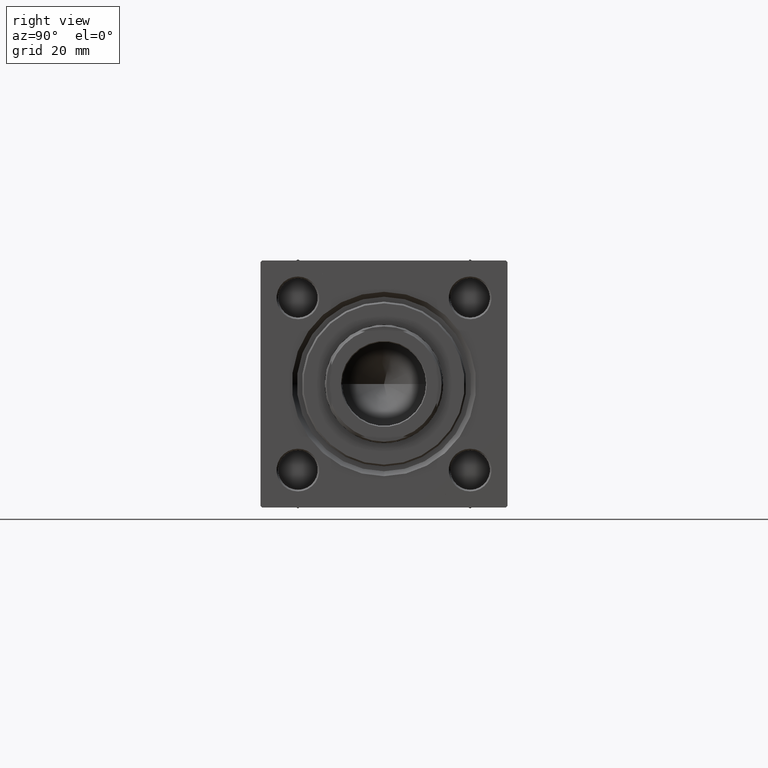
[diagram: clean part render]
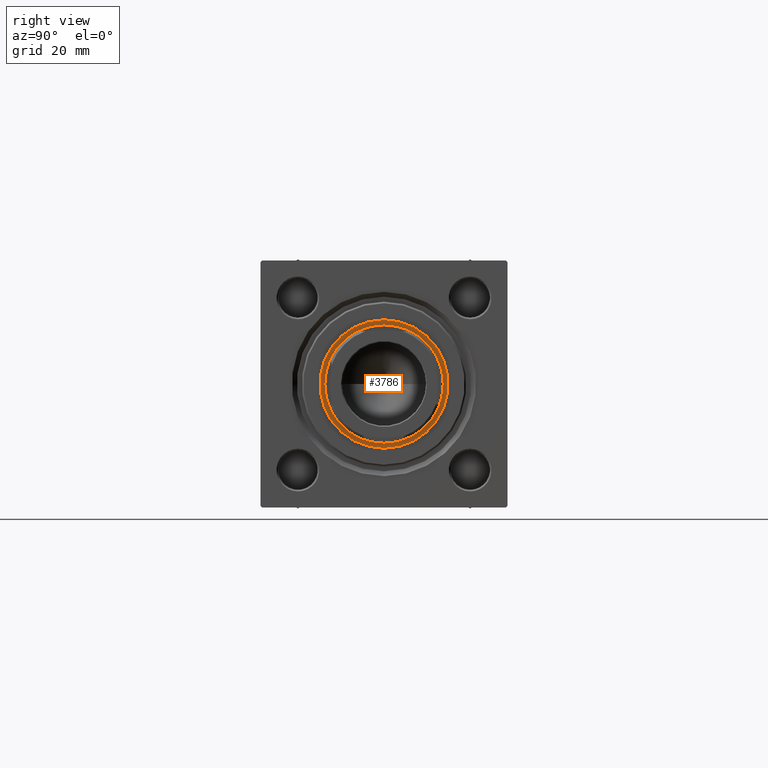
[diagram: same view with one face highlighted and labeled with its STEP entity id]
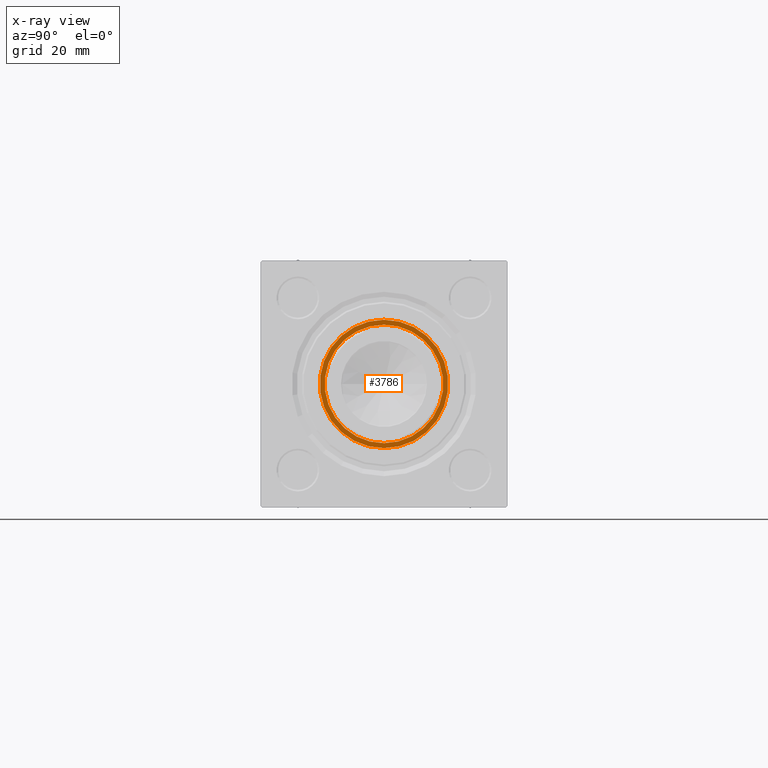
[diagram: x-ray of the same camera — body ghosted, the highlighted face saturated]
A machine part, right view. The second image highlights one B-rep face of the part: STEP entity #3786.
The next image is the same camera in x-ray: the body ghosted, the highlighted face saturated — about 0% of this face is hidden behind the body in this view.
In plain terms, the highlighted planar face has unit normal (1, 0, 0).
Its self-contained STEP definition (entity closure, byte-faithful):
#3696 = AXIS2_PLACEMENT_3D ( 'NONE', #47457, #9365, #28144 ) ;
#3786 = ADVANCED_FACE ( 'NONE', ( #28901, #36764 ), #9609, .T. ) ;
#4073 = DIRECTION ( 'NONE',  ( 1.000000000000000000, 0.000000000000000000, 0.000000000000000000 ) ) ;
#4818 = DIRECTION ( 'NONE',  ( 0.000000000000000000, 0.000000000000000000, 1.000000000000000000 ) ) ;
#6555 = CARTESIAN_POINT ( 'NONE',  ( 0.000000000000000000, 0.000000000000000000, 37.19999999999999574 ) ) ;
#8770 = CARTESIAN_POINT ( 'NONE',  ( 0.000000000000000000, 0.000000000000000000, 37.19999999999999574 ) ) ;
#9365 = DIRECTION ( 'NONE',  ( 0.000000000000000000, 0.000000000000000000, 1.000000000000000000 ) ) ;
#9609 = PLANE ( 'NONE',  #3696 ) ;
#11141 = ORIENTED_EDGE ( 'NONE', *, *, #37153, .T. ) ;
#12441 = CIRCLE ( 'NONE', #39219, 19.50000000000000000 ) ;
#14300 = ORIENTED_EDGE ( 'NONE', *, *, #23589, .T. ) ;
#14955 = CARTESIAN_POINT ( 'NONE',  ( 19.50000000000000000, 0.000000000000000000, 37.19999999999999574 ) ) ;
#15113 = ORIENTED_EDGE ( 'NONE', *, *, #16611, .T. ) ;
#16214 = ORIENTED_EDGE ( 'NONE', *, *, #40590, .T. ) ;
#16611 = EDGE_CURVE ( 'NONE', #48754, #24118, #12441, .T. ) ;
#16695 = EDGE_LOOP ( 'NONE', ( #14300, #16214 ) ) ;
#18954 = DIRECTION ( 'NONE',  ( 1.000000000000000000, 0.000000000000000000, 0.000000000000000000 ) ) ;
#19849 = CARTESIAN_POINT ( 'NONE',  ( 18.00000000000000000, 0.000000000000000000, 37.19999999999999574 ) ) ;
#19933 = DIRECTION ( 'NONE',  ( 0.000000000000000000, 0.000000000000000000, 1.000000000000000000 ) ) ;
#21002 = AXIS2_PLACEMENT_3D ( 'NONE', #8770, #19933, #35402 ) ;
#23589 = EDGE_CURVE ( 'NONE', #42035, #27137, #33648, .T. ) ;
#24118 = VERTEX_POINT ( 'NONE', #36203 ) ;
#27137 = VERTEX_POINT ( 'NONE', #35409 ) ;
#28144 = DIRECTION ( 'NONE',  ( 1.000000000000000000, 0.000000000000000000, -0.000000000000000000 ) ) ;
#28901 = FACE_OUTER_BOUND ( 'NONE', #32167, .T. ) ;
#30376 = DIRECTION ( 'NONE',  ( -0.000000000000000000, -0.000000000000000000, -1.000000000000000000 ) ) ;
#32167 = EDGE_LOOP ( 'NONE', ( #15113, #11141 ) ) ;
#33281 = AXIS2_PLACEMENT_3D ( 'NONE', #6555, #30376, #18954 ) ;
#33648 = CIRCLE ( 'NONE', #43393, 18.00000000000000000 ) ;
#34121 = DIRECTION ( 'NONE',  ( -0.000000000000000000, -0.000000000000000000, -1.000000000000000000 ) ) ;
#34875 = CIRCLE ( 'NONE', #33281, 18.00000000000000000 ) ;
#35402 = DIRECTION ( 'NONE',  ( 1.000000000000000000, 0.000000000000000000, 0.000000000000000000 ) ) ;
#35409 = CARTESIAN_POINT ( 'NONE',  ( -18.00000000000000000, 2.204364238465235428E-15, 37.19999999999999574 ) ) ;
#36203 = CARTESIAN_POINT ( 'NONE',  ( -19.50000000000000000, 2.388061258337338939E-15, 37.19999999999999574 ) ) ;
#36764 = FACE_BOUND ( 'NONE', #16695, .T. ) ;
#37153 = EDGE_CURVE ( 'NONE', #24118, #48754, #42921, .T. ) ;
#38700 = CARTESIAN_POINT ( 'NONE',  ( 0.000000000000000000, 0.000000000000000000, 37.19999999999999574 ) ) ;
#38830 = CARTESIAN_POINT ( 'NONE',  ( 0.000000000000000000, 0.000000000000000000, 37.19999999999999574 ) ) ;
#39219 = AXIS2_PLACEMENT_3D ( 'NONE', #38830, #4818, #4073 ) ;
#40590 = EDGE_CURVE ( 'NONE', #27137, #42035, #34875, .T. ) ;
#42035 = VERTEX_POINT ( 'NONE', #19849 ) ;
#42921 = CIRCLE ( 'NONE', #21002, 19.50000000000000000 ) ;
#43393 = AXIS2_PLACEMENT_3D ( 'NONE', #38700, #34121, #49635 ) ;
#47457 = CARTESIAN_POINT ( 'NONE',  ( 0.000000000000000000, 0.000000000000000000, 37.19999999999999574 ) ) ;
#48754 = VERTEX_POINT ( 'NONE', #14955 ) ;
#49635 = DIRECTION ( 'NONE',  ( 1.000000000000000000, 0.000000000000000000, 0.000000000000000000 ) ) ;